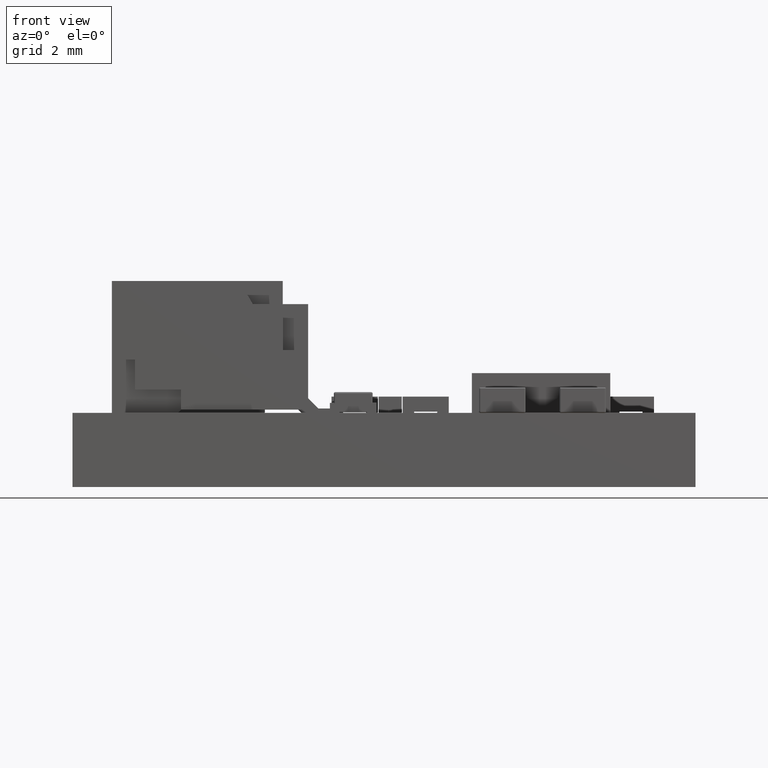
[diagram: clean part render]
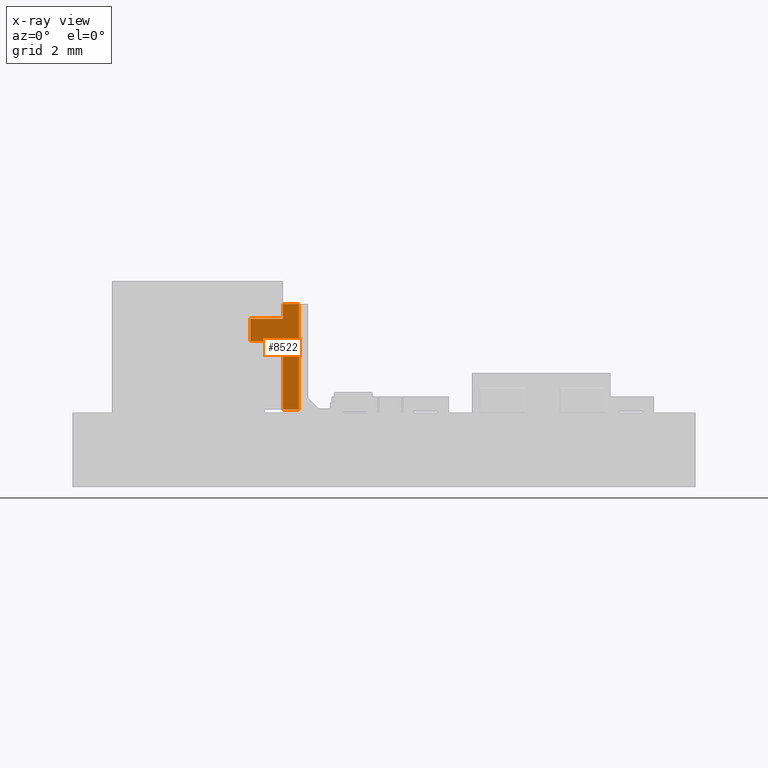
[diagram: x-ray — body ghosted, one internal face saturated and labeled with its STEP entity id]
A machine part, front view, then the same camera in x-ray: the body is ghosted and one INTERNAL B-rep face — a face not visible from any outside direction — is saturated and labeled: STEP entity #8522.
In plain terms, the highlighted planar face has unit normal (-0, 1, -0).
Its self-contained STEP definition (entity closure, byte-faithful):
#5550 = VERTEX_POINT('',#5551);
#5551 = CARTESIAN_POINT('',(1.6,2.755,0.195));
#5557 = EDGE_CURVE('',#5550,#5558,#5560,.T.);
#5558 = VERTEX_POINT('',#5559);
#5559 = CARTESIAN_POINT('',(1.6,2.435,0.195));
#5560 = LINE('',#5561,#5562);
#5561 = CARTESIAN_POINT('',(1.6,2.755,0.195));
#5562 = VECTOR('',#5563,1.);
#5563 = DIRECTION('',(0.,-1.,1.186216818912E-17));
#6132 = EDGE_CURVE('',#6133,#6135,#6137,.T.);
#6133 = VERTEX_POINT('',#6134);
#6134 = CARTESIAN_POINT('',(1.6,2.435,0.895));
#6135 = VERTEX_POINT('',#6136);
#6136 = CARTESIAN_POINT('',(1.6,1.955,0.895));
#6137 = LINE('',#6138,#6139);
#6138 = CARTESIAN_POINT('',(1.6,0.445,0.895));
#6139 = VECTOR('',#6140,1.);
#6140 = DIRECTION('',(5.605193857299E-45,-1.,-3.914088217711E-59));
#6363 = VERTEX_POINT('',#6364);
#6364 = CARTESIAN_POINT('',(1.6,0.47,0.195));
#6370 = EDGE_CURVE('',#6363,#6371,#6373,.T.);
#6371 = VERTEX_POINT('',#6372);
#6372 = CARTESIAN_POINT('',(1.6,0.47,-0.155));
#6373 = LINE('',#6374,#6375);
#6374 = CARTESIAN_POINT('',(1.6,0.47,-0.355));
#6375 = VECTOR('',#6376,1.);
#6376 = DIRECTION('',(-7.096596038087E-15,9.856383386232E-17,-1.));
#8044 = VERTEX_POINT('',#8045);
#8045 = CARTESIAN_POINT('',(1.6,2.755,-0.155));
#8051 = EDGE_CURVE('',#8044,#5550,#8052,.T.);
#8052 = LINE('',#8053,#8054);
#8053 = CARTESIAN_POINT('',(1.6,2.755,0.195));
#8054 = VECTOR('',#8055,1.);
#8055 = DIRECTION('',(7.096596038087E-15,-0.,1.));
#8251 = EDGE_CURVE('',#5558,#6133,#8252,.T.);
#8252 = LINE('',#8253,#8254);
#8253 = CARTESIAN_POINT('',(1.6,2.435,0.895));
#8254 = VECTOR('',#8255,1.);
#8255 = DIRECTION('',(6.814985084195E-15,-0.,1.));
#8265 = EDGE_CURVE('',#6135,#8266,#8268,.T.);
#8266 = VERTEX_POINT('',#8267);
#8267 = CARTESIAN_POINT('',(1.6,1.955,0.195));
#8268 = LINE('',#8269,#8270);
#8269 = CARTESIAN_POINT('',(1.6,1.955,0.195));
#8270 = VECTOR('',#8271,1.);
#8271 = DIRECTION('',(-6.814985084195E-15,-0.,-1.));
#8510 = EDGE_CURVE('',#8044,#6371,#8511,.T.);
#8511 = LINE('',#8512,#8513);
#8512 = CARTESIAN_POINT('',(1.6,0.47,-0.155));
#8513 = VECTOR('',#8514,1.);
#8514 = DIRECTION('',(-2.486182800327E-29,-1.,-3.491483361109E-15));
#8522 = ADVANCED_FACE('',(#8523),#8538,.T.);
#8523 = FACE_BOUND('',#8524,.T.);
#8524 = EDGE_LOOP('',(#8525,#8526,#8527,#8528,#8534,#8535,#8536,#8537));
#8525 = ORIENTED_EDGE('',*,*,#8051,.F.);
#8526 = ORIENTED_EDGE('',*,*,#8510,.T.);
#8527 = ORIENTED_EDGE('',*,*,#6370,.F.);
#8528 = ORIENTED_EDGE('',*,*,#8529,.F.);
#8529 = EDGE_CURVE('',#8266,#6363,#8530,.T.);
#8530 = LINE('',#8531,#8532);
#8531 = CARTESIAN_POINT('',(1.6,2.755,0.195));
#8532 = VECTOR('',#8533,1.);
#8533 = DIRECTION('',(0.,-1.,1.186216818912E-17));
#8534 = ORIENTED_EDGE('',*,*,#8265,.F.);
#8535 = ORIENTED_EDGE('',*,*,#6132,.F.);
#8536 = ORIENTED_EDGE('',*,*,#8251,.F.);
#8537 = ORIENTED_EDGE('',*,*,#5557,.F.);
#8538 = PLANE('',#8539);
#8539 = AXIS2_PLACEMENT_3D('',#8540,#8541,#8542);
#8540 = CARTESIAN_POINT('',(1.6,-1.68362031548E-31,-1.48914887484E-14));
#8541 = DIRECTION('',(-1.,8.418101577402E-32,7.096596038087E-15));
#8542 = DIRECTION('',(7.096596038087E-15,0.,1.));